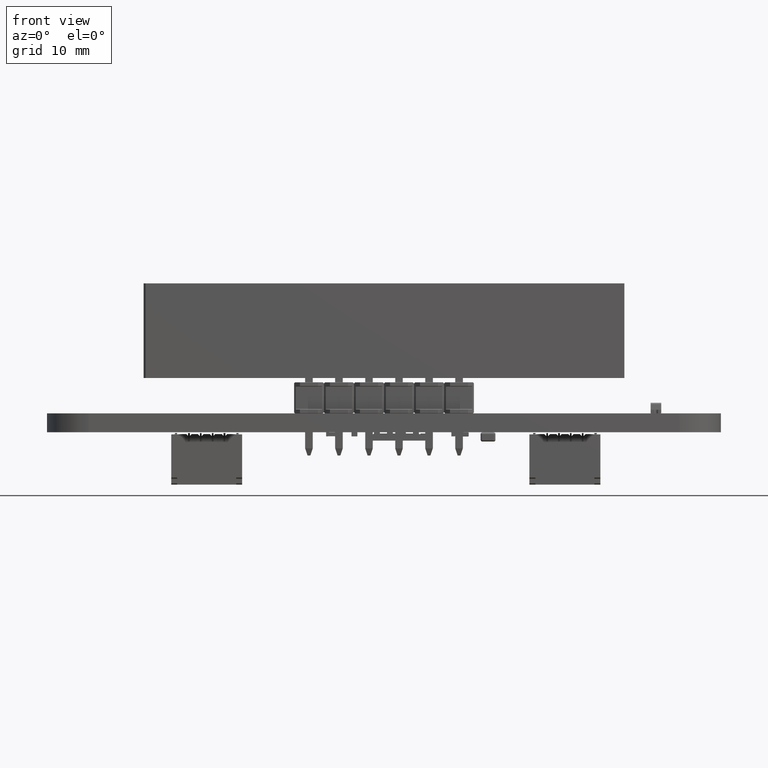
[diagram: clean part render]
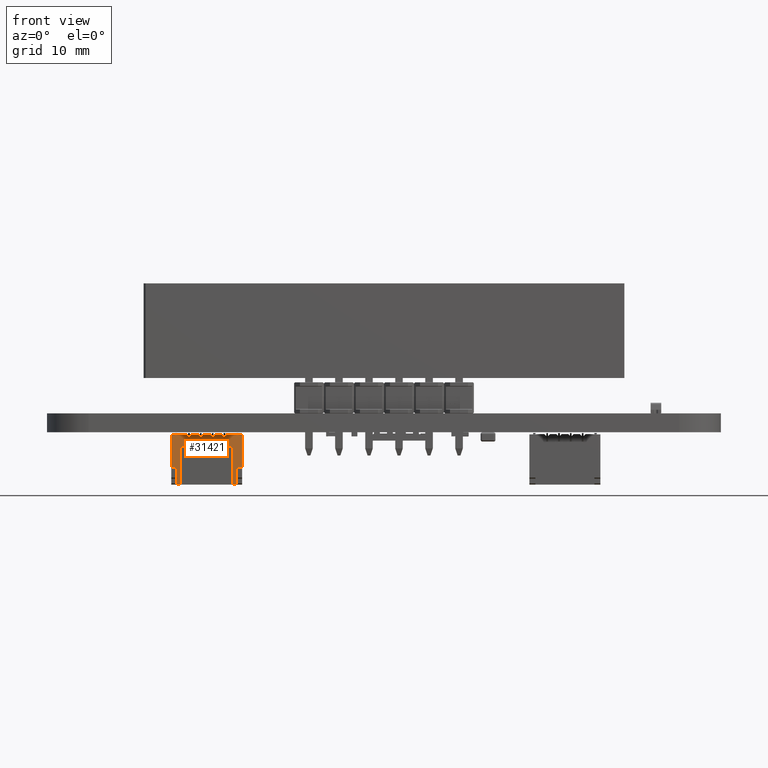
[diagram: same view with one face highlighted and labeled with its STEP entity id]
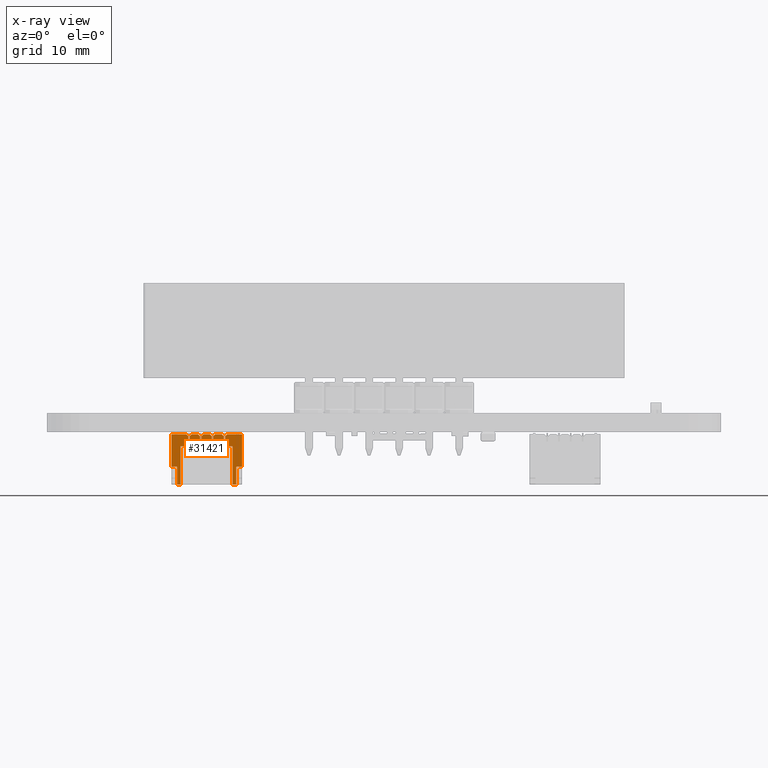
[diagram: x-ray of the same camera — body ghosted, the highlighted face saturated]
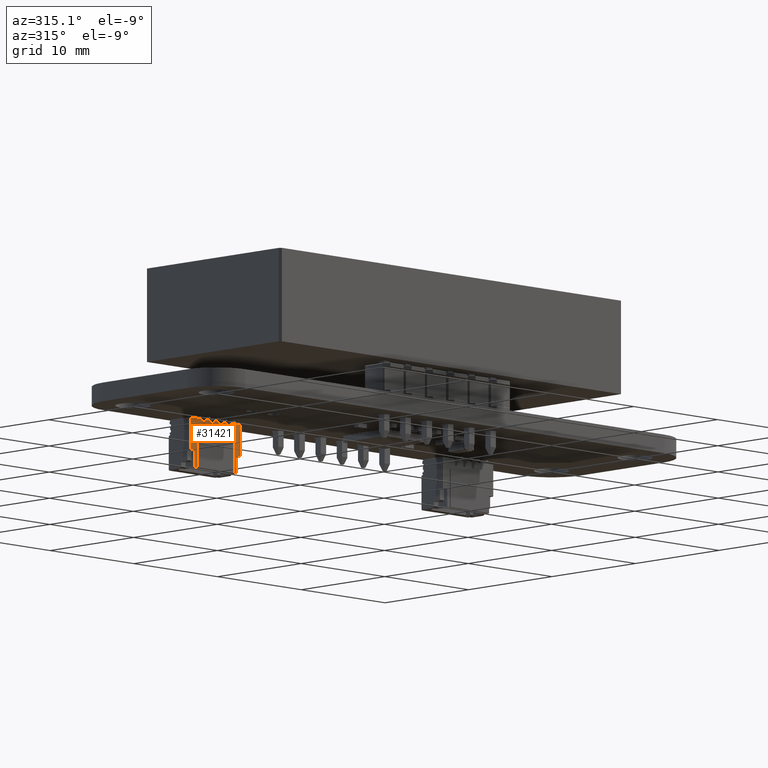
[diagram: same view with one face highlighted and labeled with its STEP entity id]
A machine part, front view. The second image highlights one B-rep face of the part: STEP entity #31421.
The next image is the same camera in x-ray: the body ghosted, the highlighted face saturated — about 0% of this face is hidden behind the body in this view.
A second angle (auxiliary view) of the same face is appended — the face is thin or edge-on in the first view.
In plain terms, the highlighted planar face has unit normal (0, 1, 0).
Its self-contained STEP definition (entity closure, byte-faithful):
#31303 = VERTEX_POINT('',#31304);
#31304 = CARTESIAN_POINT('',(3.,0.1,1.33));
#31310 = EDGE_CURVE('',#31303,#31311,#31313,.T.);
#31311 = VERTEX_POINT('',#31312);
#31312 = CARTESIAN_POINT('',(1.725,0.1,1.33));
#31313 = LINE('',#31314,#31315);
#31314 = CARTESIAN_POINT('',(3.,0.1,1.33));
#31315 = VECTOR('',#31316,1.);
#31316 = DIRECTION('',(-1.,-0.,-0.));
#31334 = VERTEX_POINT('',#31335);
#31335 = CARTESIAN_POINT('',(1.275,0.1,1.33));
#31341 = EDGE_CURVE('',#31334,#31342,#31344,.T.);
#31342 = VERTEX_POINT('',#31343);
#31343 = CARTESIAN_POINT('',(0.725,1.E-01,1.33));
#31344 = LINE('',#31345,#31346);
#31345 = CARTESIAN_POINT('',(3.,0.1,1.33));
#31346 = VECTOR('',#31347,1.);
#31347 = DIRECTION('',(-1.,-0.,-0.));
#31365 = VERTEX_POINT('',#31366);
#31366 = CARTESIAN_POINT('',(0.275,0.1,1.33));
#31372 = EDGE_CURVE('',#31365,#31373,#31375,.T.);
#31373 = VERTEX_POINT('',#31374);
#31374 = CARTESIAN_POINT('',(-0.275,0.1,1.33));
#31375 = LINE('',#31376,#31377);
#31376 = CARTESIAN_POINT('',(3.,0.1,1.33));
#31377 = VECTOR('',#31378,1.);
#31378 = DIRECTION('',(-1.,-0.,-0.));
#31396 = VERTEX_POINT('',#31397);
#31397 = CARTESIAN_POINT('',(-0.725,1.E-01,1.33));
#31403 = EDGE_CURVE('',#31396,#31404,#31406,.T.);
#31404 = VERTEX_POINT('',#31405);
#31405 = CARTESIAN_POINT('',(-1.275,0.1,1.33));
#31406 = LINE('',#31407,#31408);
#31407 = CARTESIAN_POINT('',(3.,0.1,1.33));
#31408 = VECTOR('',#31409,1.);
#31409 = DIRECTION('',(-1.,-0.,-0.));
#31421 = ADVANCED_FACE('',(#31422),#31676,.F.);
#31422 = FACE_BOUND('',#31423,.T.);
#31423 = EDGE_LOOP('',(#31424,#31425,#31433,#31441,#31449,#31457,#31463,
    #31464,#31472,#31480,#31488,#31496,#31504,#31512,#31520,#31528,
    #31536,#31544,#31552,#31560,#31568,#31576,#31584,#31592,#31598,
    #31599,#31607,#31615,#31623,#31631,#31637,#31638,#31646,#31654,
    #31662,#31670));
#31424 = ORIENTED_EDGE('',*,*,#31341,.F.);
#31425 = ORIENTED_EDGE('',*,*,#31426,.T.);
#31426 = EDGE_CURVE('',#31334,#31427,#31429,.T.);
#31427 = VERTEX_POINT('',#31428);
#31428 = CARTESIAN_POINT('',(1.425,0.25,1.33));
#31429 = LINE('',#31430,#31431);
#31430 = CARTESIAN_POINT('',(2.6375,1.4625,1.33));
#31431 = VECTOR('',#31432,1.);
#31432 = DIRECTION('',(0.707106781187,0.707106781187,1.533293416683E-16)
  );
#31433 = ORIENTED_EDGE('',*,*,#31434,.T.);
#31434 = EDGE_CURVE('',#31427,#31435,#31437,.T.);
#31435 = VERTEX_POINT('',#31436);
#31436 = CARTESIAN_POINT('',(1.425,0.7,1.33));
#31437 = LINE('',#31438,#31439);
#31438 = CARTESIAN_POINT('',(1.425,1.1,1.33));
#31439 = VECTOR('',#31440,1.);
#31440 = DIRECTION('',(0.,1.,2.168404344971E-16));
#31441 = ORIENTED_EDGE('',*,*,#31442,.F.);
#31442 = EDGE_CURVE('',#31443,#31435,#31445,.T.);
#31443 = VERTEX_POINT('',#31444);
#31444 = CARTESIAN_POINT('',(1.575,0.7,1.33));
#31445 = LINE('',#31446,#31447);
#31446 = CARTESIAN_POINT('',(3.,0.7,1.33));
#31447 = VECTOR('',#31448,1.);
#31448 = DIRECTION('',(-1.,0.,0.));
#31449 = ORIENTED_EDGE('',*,*,#31450,.F.);
#31450 = EDGE_CURVE('',#31451,#31443,#31453,.T.);
#31451 = VERTEX_POINT('',#31452);
#31452 = CARTESIAN_POINT('',(1.575,0.25,1.33));
#31453 = LINE('',#31454,#31455);
#31454 = CARTESIAN_POINT('',(1.575,1.1,1.33));
#31455 = VECTOR('',#31456,1.);
#31456 = DIRECTION('',(0.,1.,2.168404344971E-16));
#31457 = ORIENTED_EDGE('',*,*,#31458,.F.);
#31458 = EDGE_CURVE('',#31311,#31451,#31459,.T.);
#31459 = LINE('',#31460,#31461);
#31460 = CARTESIAN_POINT('',(1.8625,-3.75E-02,1.33));
#31461 = VECTOR('',#31462,1.);
#31462 = DIRECTION('',(-0.707106781187,0.707106781187,1.533293416683E-16
    ));
#31463 = ORIENTED_EDGE('',*,*,#31310,.F.);
#31464 = ORIENTED_EDGE('',*,*,#31465,.F.);
#31465 = EDGE_CURVE('',#31466,#31303,#31468,.T.);
#31466 = VERTEX_POINT('',#31467);
#31467 = CARTESIAN_POINT('',(3.,2.85,1.33));
#31468 = LINE('',#31469,#31470);
#31469 = CARTESIAN_POINT('',(3.,1.1,1.33));
#31470 = VECTOR('',#31471,1.);
#31471 = DIRECTION('',(0.,-1.,-2.168404344971E-16));
#31472 = ORIENTED_EDGE('',*,*,#31473,.F.);
#31473 = EDGE_CURVE('',#31474,#31466,#31476,.T.);
#31474 = VERTEX_POINT('',#31475);
#31475 = CARTESIAN_POINT('',(2.5,2.85,1.33));
#31476 = LINE('',#31477,#31478);
#31477 = CARTESIAN_POINT('',(2.5,2.85,1.33));
#31478 = VECTOR('',#31479,1.);
#31479 = DIRECTION('',(1.,-0.,-0.));
#31480 = ORIENTED_EDGE('',*,*,#31481,.T.);
#31481 = EDGE_CURVE('',#31474,#31482,#31484,.T.);
#31482 = VERTEX_POINT('',#31483);
#31483 = CARTESIAN_POINT('',(2.5,4.35,1.33));
#31484 = LINE('',#31485,#31486);
#31485 = CARTESIAN_POINT('',(2.5,0.,1.33));
#31486 = VECTOR('',#31487,1.);
#31487 = DIRECTION('',(0.,1.,0.));
#31488 = ORIENTED_EDGE('',*,*,#31489,.F.);
#31489 = EDGE_CURVE('',#31490,#31482,#31492,.T.);
#31490 = VERTEX_POINT('',#31491);
#31491 = CARTESIAN_POINT('',(2.2,4.35,1.33));
#31492 = LINE('',#31493,#31494);
#31493 = CARTESIAN_POINT('',(2.2,4.35,1.33));
#31494 = VECTOR('',#31495,1.);
#31495 = DIRECTION('',(1.,-0.,-0.));
#31496 = ORIENTED_EDGE('',*,*,#31497,.F.);
#31497 = EDGE_CURVE('',#31498,#31490,#31500,.T.);
#31498 = VERTEX_POINT('',#31499);
#31499 = CARTESIAN_POINT('',(2.2,1.1,1.33));
#31500 = LINE('',#31501,#31502);
#31501 = CARTESIAN_POINT('',(2.2,0.,1.33));
#31502 = VECTOR('',#31503,1.);
#31503 = DIRECTION('',(0.,1.,0.));
#31504 = ORIENTED_EDGE('',*,*,#31505,.T.);
#31505 = EDGE_CURVE('',#31498,#31506,#31508,.T.);
#31506 = VERTEX_POINT('',#31507);
#31507 = CARTESIAN_POINT('',(-2.2,1.1,1.33));
#31508 = LINE('',#31509,#31510);
#31509 = CARTESIAN_POINT('',(3.,1.1,1.33));
#31510 = VECTOR('',#31511,1.);
#31511 = DIRECTION('',(-1.,-0.,-0.));
#31512 = ORIENTED_EDGE('',*,*,#31513,.T.);
#31513 = EDGE_CURVE('',#31506,#31514,#31516,.T.);
#31514 = VERTEX_POINT('',#31515);
#31515 = CARTESIAN_POINT('',(-2.2,4.35,1.33));
#31516 = LINE('',#31517,#31518);
#31517 = CARTESIAN_POINT('',(-2.2,0.,1.33));
#31518 = VECTOR('',#31519,1.);
#31519 = DIRECTION('',(0.,1.,0.));
#31520 = ORIENTED_EDGE('',*,*,#31521,.T.);
#31521 = EDGE_CURVE('',#31514,#31522,#31524,.T.);
#31522 = VERTEX_POINT('',#31523);
#31523 = CARTESIAN_POINT('',(-2.5,4.35,1.33));
#31524 = LINE('',#31525,#31526);
#31525 = CARTESIAN_POINT('',(-2.2,4.35,1.33));
#31526 = VECTOR('',#31527,1.);
#31527 = DIRECTION('',(-1.,-0.,-0.));
#31528 = ORIENTED_EDGE('',*,*,#31529,.F.);
#31529 = EDGE_CURVE('',#31530,#31522,#31532,.T.);
#31530 = VERTEX_POINT('',#31531);
#31531 = CARTESIAN_POINT('',(-2.5,2.85,1.33));
#31532 = LINE('',#31533,#31534);
#31533 = CARTESIAN_POINT('',(-2.5,0.,1.33));
#31534 = VECTOR('',#31535,1.);
#31535 = DIRECTION('',(0.,1.,-0.));
#31536 = ORIENTED_EDGE('',*,*,#31537,.T.);
#31537 = EDGE_CURVE('',#31530,#31538,#31540,.T.);
#31538 = VERTEX_POINT('',#31539);
#31539 = CARTESIAN_POINT('',(-3.,2.85,1.33));
#31540 = LINE('',#31541,#31542);
#31541 = CARTESIAN_POINT('',(-2.5,2.85,1.33));
#31542 = VECTOR('',#31543,1.);
#31543 = DIRECTION('',(-1.,-0.,-0.));
#31544 = ORIENTED_EDGE('',*,*,#31545,.T.);
#31545 = EDGE_CURVE('',#31538,#31546,#31548,.T.);
#31546 = VERTEX_POINT('',#31547);
#31547 = CARTESIAN_POINT('',(-3.,0.1,1.33));
#31548 = LINE('',#31549,#31550);
#31549 = CARTESIAN_POINT('',(-3.,1.1,1.33));
#31550 = VECTOR('',#31551,1.);
#31551 = DIRECTION('',(0.,-1.,-2.168404344971E-16));
#31552 = ORIENTED_EDGE('',*,*,#31553,.F.);
#31553 = EDGE_CURVE('',#31554,#31546,#31556,.T.);
#31554 = VERTEX_POINT('',#31555);
#31555 = CARTESIAN_POINT('',(-1.725,1.E-01,1.33));
#31556 = LINE('',#31557,#31558);
#31557 = CARTESIAN_POINT('',(3.,0.1,1.33));
#31558 = VECTOR('',#31559,1.);
#31559 = DIRECTION('',(-1.,-0.,-0.));
#31560 = ORIENTED_EDGE('',*,*,#31561,.T.);
#31561 = EDGE_CURVE('',#31554,#31562,#31564,.T.);
#31562 = VERTEX_POINT('',#31563);
#31563 = CARTESIAN_POINT('',(-1.575,0.25,1.33));
#31564 = LINE('',#31565,#31566);
#31565 = CARTESIAN_POINT('',(1.1375,2.9625,1.33));
#31566 = VECTOR('',#31567,1.);
#31567 = DIRECTION('',(0.707106781187,0.707106781187,1.533293416683E-16)
  );
#31568 = ORIENTED_EDGE('',*,*,#31569,.T.);
#31569 = EDGE_CURVE('',#31562,#31570,#31572,.T.);
#31570 = VERTEX_POINT('',#31571);
#31571 = CARTESIAN_POINT('',(-1.575,0.7,1.33));
#31572 = LINE('',#31573,#31574);
#31573 = CARTESIAN_POINT('',(-1.575,1.1,1.33));
#31574 = VECTOR('',#31575,1.);
#31575 = DIRECTION('',(0.,1.,2.168404344971E-16));
#31576 = ORIENTED_EDGE('',*,*,#31577,.F.);
#31577 = EDGE_CURVE('',#31578,#31570,#31580,.T.);
#31578 = VERTEX_POINT('',#31579);
#31579 = CARTESIAN_POINT('',(-1.425,0.7,1.33));
#31580 = LINE('',#31581,#31582);
#31581 = CARTESIAN_POINT('',(3.,0.7,1.33));
#31582 = VECTOR('',#31583,1.);
#31583 = DIRECTION('',(-1.,0.,0.));
#31584 = ORIENTED_EDGE('',*,*,#31585,.F.);
#31585 = EDGE_CURVE('',#31586,#31578,#31588,.T.);
#31586 = VERTEX_POINT('',#31587);
#31587 = CARTESIAN_POINT('',(-1.425,0.25,1.33));
#31588 = LINE('',#31589,#31590);
#31589 = CARTESIAN_POINT('',(-1.425,1.1,1.33));
#31590 = VECTOR('',#31591,1.);
#31591 = DIRECTION('',(0.,1.,2.168404344971E-16));
#31592 = ORIENTED_EDGE('',*,*,#31593,.F.);
#31593 = EDGE_CURVE('',#31404,#31586,#31594,.T.);
#31594 = LINE('',#31595,#31596);
#31595 = CARTESIAN_POINT('',(0.3625,-1.5375,1.33));
#31596 = VECTOR('',#31597,1.);
#31597 = DIRECTION('',(-0.707106781187,0.707106781187,1.533293416683E-16
    ));
#31598 = ORIENTED_EDGE('',*,*,#31403,.F.);
#31599 = ORIENTED_EDGE('',*,*,#31600,.T.);
#31600 = EDGE_CURVE('',#31396,#31601,#31603,.T.);
#31601 = VERTEX_POINT('',#31602);
#31602 = CARTESIAN_POINT('',(-0.575,0.25,1.33));
#31603 = LINE('',#31604,#31605);
#31604 = CARTESIAN_POINT('',(1.6375,2.4625,1.33));
#31605 = VECTOR('',#31606,1.);
#31606 = DIRECTION('',(0.707106781187,0.707106781187,1.533293416683E-16)
  );
#31607 = ORIENTED_EDGE('',*,*,#31608,.T.);
#31608 = EDGE_CURVE('',#31601,#31609,#31611,.T.);
#31609 = VERTEX_POINT('',#31610);
#31610 = CARTESIAN_POINT('',(-0.575,0.7,1.33));
#31611 = LINE('',#31612,#31613);
#31612 = CARTESIAN_POINT('',(-0.575,1.1,1.33));
#31613 = VECTOR('',#31614,1.);
#31614 = DIRECTION('',(0.,1.,2.168404344971E-16));
#31615 = ORIENTED_EDGE('',*,*,#31616,.F.);
#31616 = EDGE_CURVE('',#31617,#31609,#31619,.T.);
#31617 = VERTEX_POINT('',#31618);
#31618 = CARTESIAN_POINT('',(-0.425,0.7,1.33));
#31619 = LINE('',#31620,#31621);
#31620 = CARTESIAN_POINT('',(3.,0.7,1.33));
#31621 = VECTOR('',#31622,1.);
#31622 = DIRECTION('',(-1.,0.,0.));
#31623 = ORIENTED_EDGE('',*,*,#31624,.F.);
#31624 = EDGE_CURVE('',#31625,#31617,#31627,.T.);
#31625 = VERTEX_POINT('',#31626);
#31626 = CARTESIAN_POINT('',(-0.425,0.25,1.33));
#31627 = LINE('',#31628,#31629);
#31628 = CARTESIAN_POINT('',(-0.425,1.1,1.33));
#31629 = VECTOR('',#31630,1.);
#31630 = DIRECTION('',(-1.807003620809E-16,1.,2.168404344971E-16));
#31631 = ORIENTED_EDGE('',*,*,#31632,.F.);
#31632 = EDGE_CURVE('',#31373,#31625,#31633,.T.);
#31633 = LINE('',#31634,#31635);
#31634 = CARTESIAN_POINT('',(0.8625,-1.0375,1.33));
#31635 = VECTOR('',#31636,1.);
#31636 = DIRECTION('',(-0.707106781187,0.707106781187,1.533293416683E-16
    ));
#31637 = ORIENTED_EDGE('',*,*,#31372,.F.);
#31638 = ORIENTED_EDGE('',*,*,#31639,.T.);
#31639 = EDGE_CURVE('',#31365,#31640,#31642,.T.);
#31640 = VERTEX_POINT('',#31641);
#31641 = CARTESIAN_POINT('',(0.425,0.25,1.33));
#31642 = LINE('',#31643,#31644);
#31643 = CARTESIAN_POINT('',(2.1375,1.9625,1.33));
#31644 = VECTOR('',#31645,1.);
#31645 = DIRECTION('',(0.707106781187,0.707106781187,1.533293416683E-16)
  );
#31646 = ORIENTED_EDGE('',*,*,#31647,.T.);
#31647 = EDGE_CURVE('',#31640,#31648,#31650,.T.);
#31648 = VERTEX_POINT('',#31649);
#31649 = CARTESIAN_POINT('',(0.425,0.7,1.33));
#31650 = LINE('',#31651,#31652);
#31651 = CARTESIAN_POINT('',(0.425,1.1,1.33));
#31652 = VECTOR('',#31653,1.);
#31653 = DIRECTION('',(-9.035018104046E-17,1.,2.168404344971E-16));
#31654 = ORIENTED_EDGE('',*,*,#31655,.F.);
#31655 = EDGE_CURVE('',#31656,#31648,#31658,.T.);
#31656 = VERTEX_POINT('',#31657);
#31657 = CARTESIAN_POINT('',(0.575,0.7,1.33));
#31658 = LINE('',#31659,#31660);
#31659 = CARTESIAN_POINT('',(3.,0.7,1.33));
#31660 = VECTOR('',#31661,1.);
#31661 = DIRECTION('',(-1.,0.,0.));
#31662 = ORIENTED_EDGE('',*,*,#31663,.F.);
#31663 = EDGE_CURVE('',#31664,#31656,#31666,.T.);
#31664 = VERTEX_POINT('',#31665);
#31665 = CARTESIAN_POINT('',(0.575,0.25,1.33));
#31666 = LINE('',#31667,#31668);
#31667 = CARTESIAN_POINT('',(0.575,1.1,1.33));
#31668 = VECTOR('',#31669,1.);
#31669 = DIRECTION('',(-1.807003620809E-16,1.,2.168404344971E-16));
#31670 = ORIENTED_EDGE('',*,*,#31671,.F.);
#31671 = EDGE_CURVE('',#31342,#31664,#31672,.T.);
#31672 = LINE('',#31673,#31674);
#31673 = CARTESIAN_POINT('',(1.3625,-0.5375,1.33));
#31674 = VECTOR('',#31675,1.);
#31675 = DIRECTION('',(-0.707106781187,0.707106781187,1.533293416683E-16
    ));
#31676 = PLANE('',#31677);
#31677 = AXIS2_PLACEMENT_3D('',#31678,#31679,#31680);
#31678 = CARTESIAN_POINT('',(3.,1.1,1.33));
#31679 = DIRECTION('',(0.,2.168404344971E-16,-1.));
#31680 = DIRECTION('',(0.,1.,2.168404344971E-16));